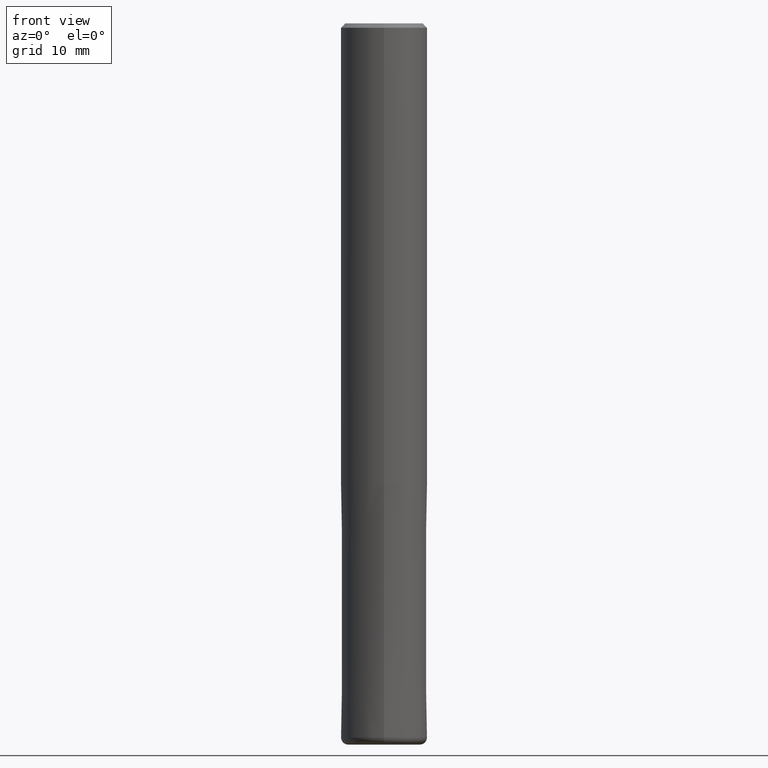
[diagram: clean part render]
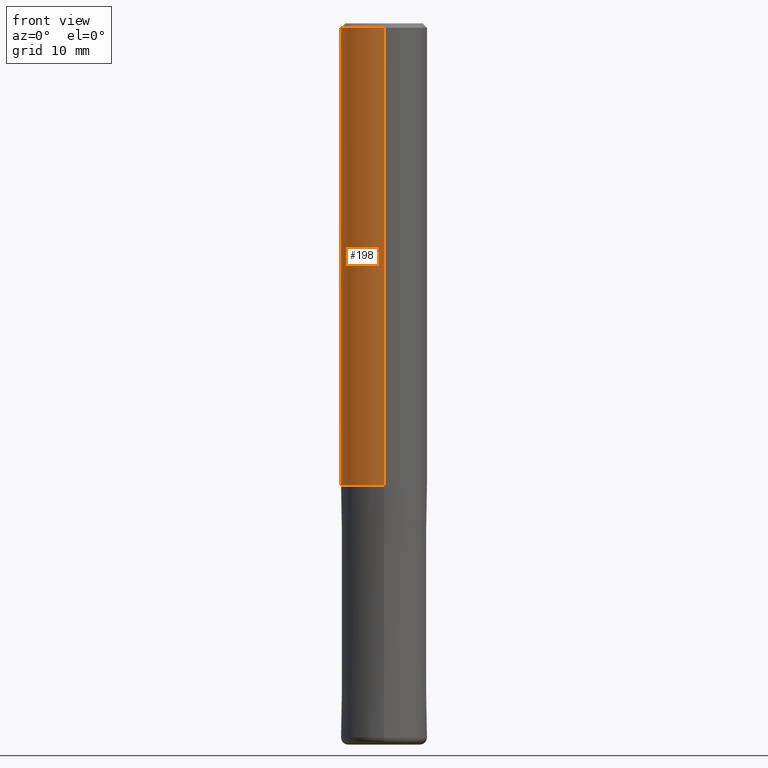
[diagram: same view with one face highlighted and labeled with its STEP entity id]
A machine part, front view. The second image highlights one B-rep face of the part: STEP entity #198.
In plain terms, the highlighted cylindrical surface (partial cylindrical patch) has radius 6 mm, axis along (-0, -0, 1).
Its self-contained STEP definition (entity closure, byte-faithful):
#144=EDGE_CURVE('',#218,#236,#313,.T.);
#176=EDGE_CURVE('',#236,#184,#349,.T.);
#184=VERTEX_POINT('',#359);
#198=ADVANCED_FACE('',(#374),#375,.T.);
#204=EDGE_CURVE('',#210,#218,#381,.T.);
#210=VERTEX_POINT('',#390);
#218=VERTEX_POINT('',#399);
#236=VERTEX_POINT('',#417);
#242=EDGE_CURVE('',#210,#184,#423,.T.);
#313=CIRCLE('',#492,6.0);
#349=LINE('',#540,#541);
#359=CARTESIAN_POINT('',(0.0,6.0,-64.0));
#374=FACE_OUTER_BOUND('',#570,.T.);
#375=CYLINDRICAL_SURFACE('',#571,6.0);
#381=LINE('',#581,#582);
#390=CARTESIAN_POINT('',(7.34763812293426E-016,-6.0,-64.0));
#399=CARTESIAN_POINT('',(7.34763812293426E-016,-6.0,-0.600000000000001));
#417=CARTESIAN_POINT('',(0.0,6.0,-0.600000000000001));
#423=CIRCLE('',#635,6.0);
#492=AXIS2_PLACEMENT_3D('',#716,#717,#718);
#540=CARTESIAN_POINT('',(-7.34763812293426E-016,6.0,-32.3));
#541=VECTOR('',#760,1.0);
#570=EDGE_LOOP('',(#783,#784,#785,#786));
#571=AXIS2_PLACEMENT_3D('',#787,#788,#789);
#581=CARTESIAN_POINT('',(7.34763812293426E-016,-6.0,-32.3));
#582=VECTOR('',#794,1.0);
#635=AXIS2_PLACEMENT_3D('',#844,#845,#846);
#716=CARTESIAN_POINT('',(0.0,0.0,-0.600000000000001));
#717=DIRECTION('',(0.0,0.0,-1.0));
#718=DIRECTION('',(0.0,1.0,0.0));
#760=DIRECTION('',(0.0,0.0,-1.0));
#783=ORIENTED_EDGE('',*,*,#176,.T.);
#784=ORIENTED_EDGE('',*,*,#242,.F.);
#785=ORIENTED_EDGE('',*,*,#204,.T.);
#786=ORIENTED_EDGE('',*,*,#144,.T.);
#787=CARTESIAN_POINT('',(0.0,0.0,-32.3));
#788=DIRECTION('',(-0.0,-0.0,1.0));
#789=DIRECTION('',(0.0,1.0,0.0));
#794=DIRECTION('',(-0.0,-0.0,1.0));
#844=CARTESIAN_POINT('',(0.0,0.0,-64.0));
#845=DIRECTION('',(0.0,0.0,-1.0));
#846=DIRECTION('',(0.0,1.0,0.0));